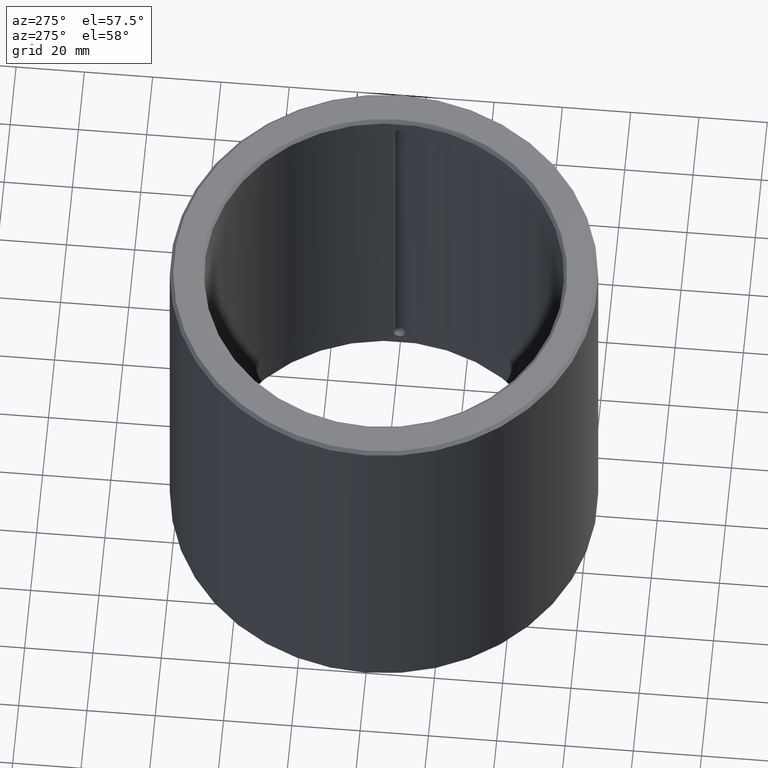
[diagram: clean part render]
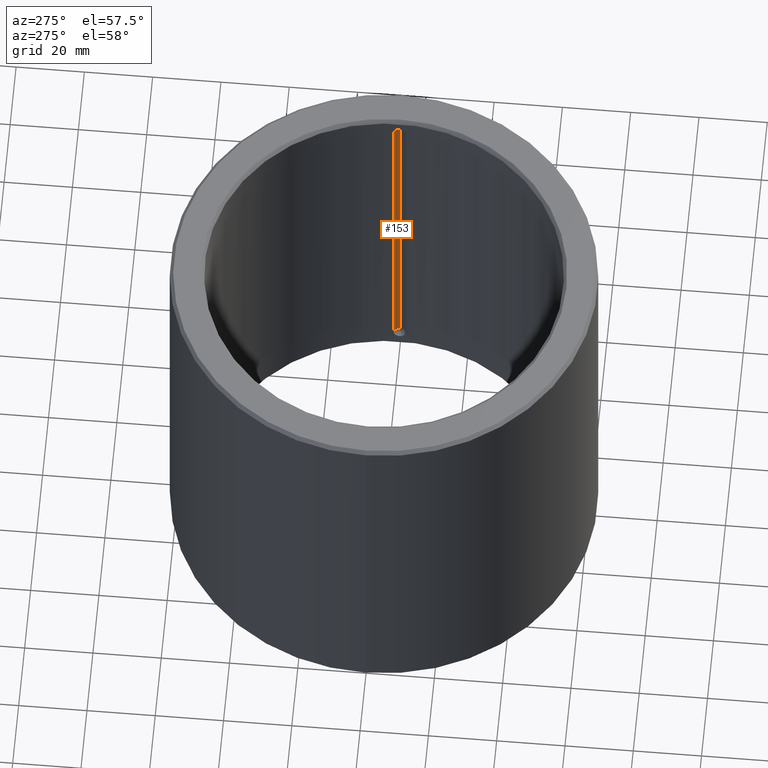
[diagram: same view with one face highlighted and labeled with its STEP entity id]
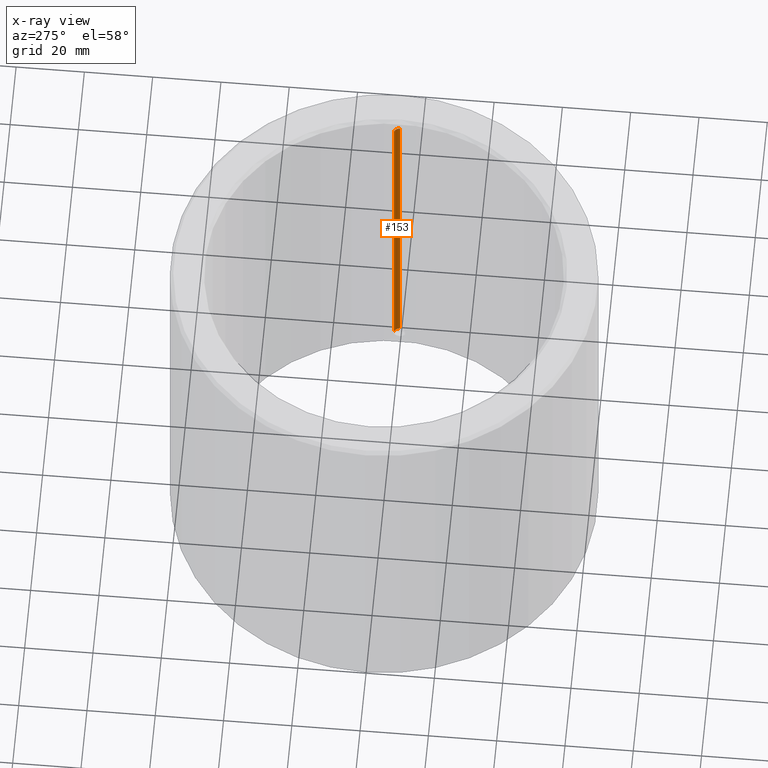
[diagram: x-ray of the same camera — body ghosted, the highlighted face saturated]
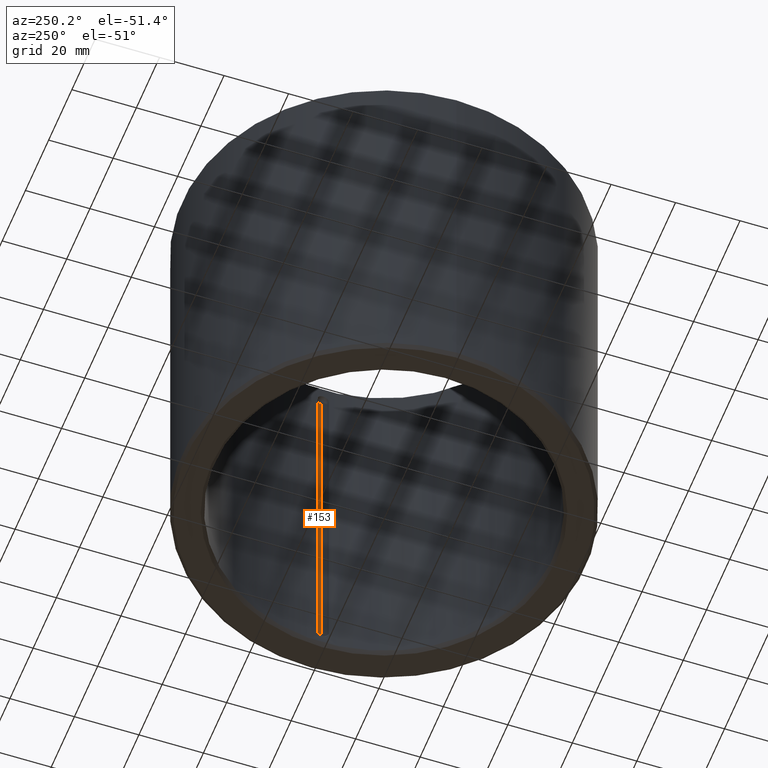
[diagram: same view with one face highlighted and labeled with its STEP entity id]
A machine part, auxiliary view. The second image highlights one B-rep face of the part: STEP entity #153.
The next image is the same camera in x-ray: the body ghosted, the highlighted face saturated — about 0% of this face is hidden behind the body in this view.
A second angle (auxiliary view) of the same face is appended — the face is thin or edge-on in the first view.
In plain terms, the highlighted cylindrical surface (edge-blend (fillet) strip) has radius 1.75 mm, axis along (-0, 0, -1).
Its self-contained STEP definition (entity closure, byte-faithful):
#153=ADVANCED_FACE('',(#168),#169,.F.);
#168=FACE_OUTER_BOUND('',#204,.T.);
#169=CYLINDRICAL_SURFACE('',#205,0.00175);
#204=EDGE_LOOP('',(#5327,#5328,#5329,#5330));
#205=AXIS2_PLACEMENT_3D('',#5331,#5332,#5333);
#5327=ORIENTED_EDGE('',*,*,#5400,.T.);
#5328=ORIENTED_EDGE('',*,*,#5401,.F.);
#5329=ORIENTED_EDGE('',*,*,#5402,.F.);
#5330=ORIENTED_EDGE('',*,*,#5403,.F.);
#5331=CARTESIAN_POINT('',(1.39884161878098E-005,-0.05225,3.10449119089334E-018));
#5332=DIRECTION('',(0.0,-6.12323399573677E-017,-1.0));
#5333=DIRECTION('',(0.0,1.0,-6.12323399573677E-017));
#5400=EDGE_CURVE('',#5420,#5421,#5422,.F.);
#5401=EDGE_CURVE('',#5423,#5421,#5424,.F.);
#5402=EDGE_CURVE('',#5425,#5423,#5426,.T.);
#5403=EDGE_CURVE('',#5420,#5425,#5427,.T.);
#5420=VERTEX_POINT('',#5456);
#5421=VERTEX_POINT('',#5457);
#5422=CIRCLE('',#5458,0.00175);
#5423=VERTEX_POINT('',#5459);
#5424=LINE('',#5460,#5461);
#5425=VERTEX_POINT('',#5462);
#5426=CIRCLE('',#5463,0.00175);
#5427=LINE('',#5464,#5465);
#5456=CARTESIAN_POINT('',(1.39884161878098E-005,-0.054,0.11425));
#5457=CARTESIAN_POINT('',(0.00175000000000009,-0.0524708252269773,0.11425));
#5458=AXIS2_PLACEMENT_3D('',#5728,#5729,#5730);
#5459=CARTESIAN_POINT('',(0.00175000000000009,-0.0524708252269773,0.00575));
#5460=CARTESIAN_POINT('',(0.00175000000000009,-0.0524708252269773,3.10449119089334E-018));
#5461=VECTOR('',#5731,1.0);
#5462=CARTESIAN_POINT('',(1.39884161878098E-005,-0.054,0.00575));
#5463=AXIS2_PLACEMENT_3D('',#5732,#5733,#5734);
#5464=CARTESIAN_POINT('',(1.39884161878098E-005,-0.054,0.11425));
#5465=VECTOR('',#5735,1.0);
#5728=CARTESIAN_POINT('',(1.39884161939285E-005,-0.05225,0.11425));
#5729=DIRECTION('',(0.0,0.0,-1.0));
#5730=DIRECTION('',(-1.0,0.0,0.0));
#5731=DIRECTION('',(0.0,-6.12323399573677E-017,-1.0));
#5732=CARTESIAN_POINT('',(1.39884161878098E-005,-0.05225,0.00575));
#5733=DIRECTION('',(0.0,0.0,1.0));
#5734=DIRECTION('',(1.0,0.0,0.0));
#5735=DIRECTION('',(0.0,0.0,-1.0));